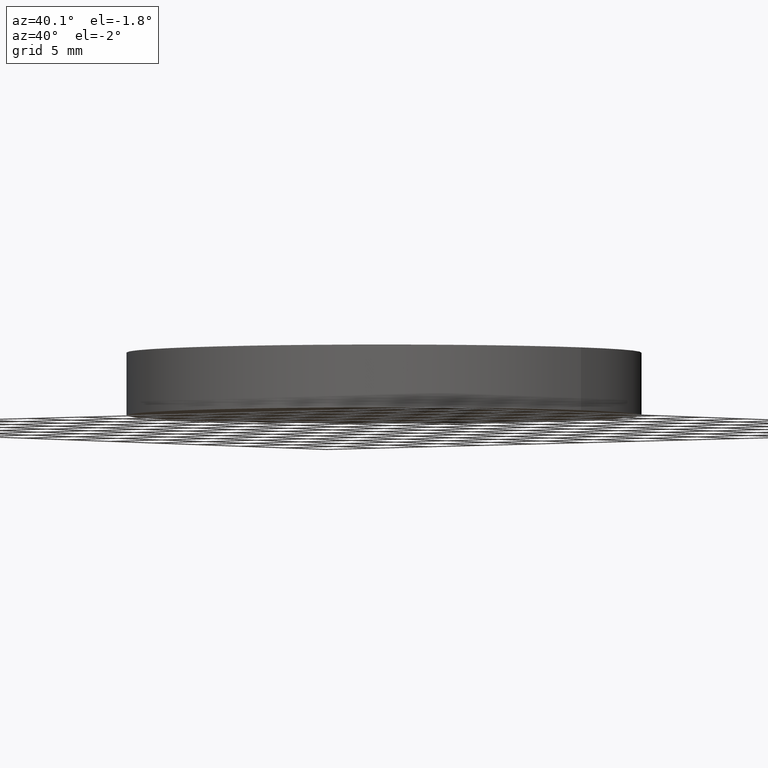
[diagram: clean part render]
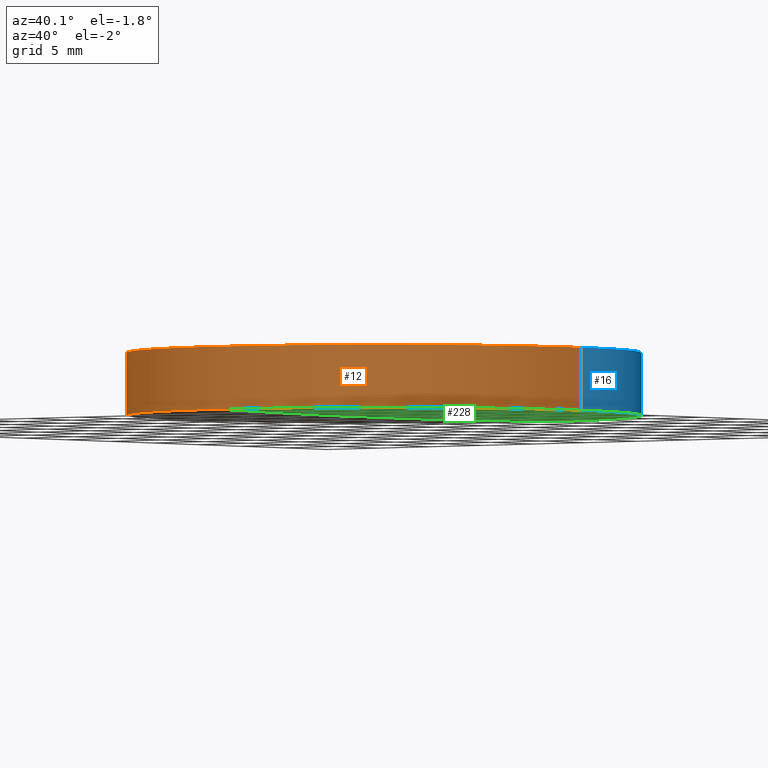
[diagram: same view with three faces highlighted in distinct colors, each labeled with its STEP entity id]
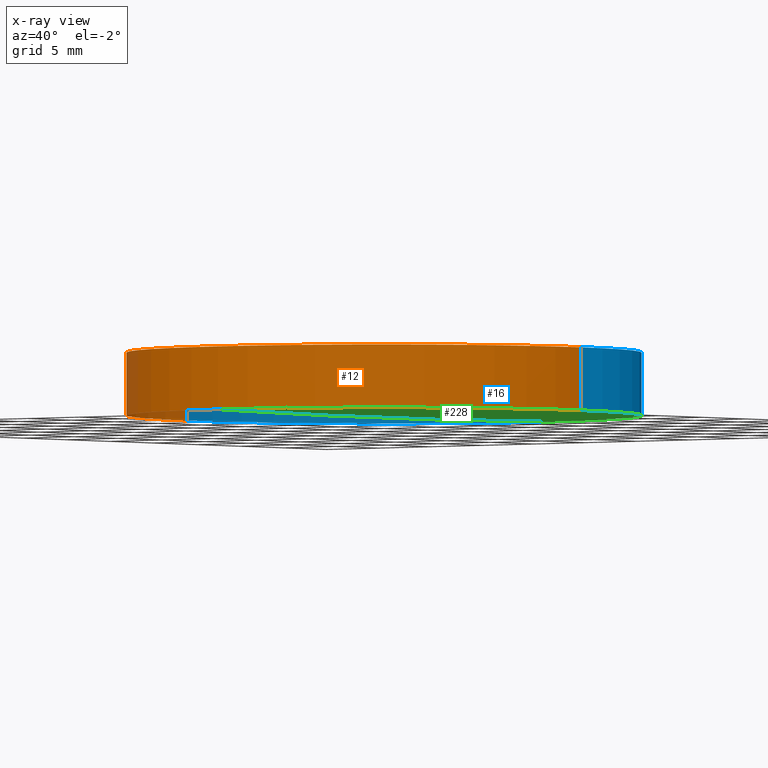
[diagram: x-ray of the same camera — body ghosted, the three highlighted faces saturated]
A machine part, auxiliary view with three faces highlighted in distinct colors.
The next image is the same camera in x-ray (body ghosted, the three faces saturated) — at least one of them is partly hidden behind the body in this view.
Their STEP definitions:

[orange] entity #12 — the highlighted cylindrical surface (partial cylindrical patch) has radius 19.05 mm, axis along (0, 0, 1).
#1 = VERTEX_POINT ( 'NONE', #48 ) ;
#2 = DIRECTION ( 'NONE',  ( 1.456985596620939900E-018, 6.792982492034799900E-035, 1.000000000000000000 ) ) ;
#5 = DIRECTION ( 'NONE',  ( -1.456985596620939900E-018, -6.792982492034799900E-035, -1.000000000000000000 ) ) ;
#11 = AXIS2_PLACEMENT_3D ( 'NONE', #174, #5, #237 ) ;
#12 = ADVANCED_FACE ( 'NONE', ( #89 ), #240, .T. ) ;
#19 = CARTESIAN_POINT ( 'NONE',  ( -19.05000000000000400, 1.444773732675583000E-015, 0.1749918621754240300 ) ) ;
#26 = CIRCLE ( 'NONE', #42, 19.05000000000000100 ) ;
#34 = DIRECTION ( 'NONE',  ( -1.456985596620939900E-018, -6.792982492034799900E-035, -1.000000000000000000 ) ) ;
#36 = VERTEX_POINT ( 'NONE', #189 ) ;
#42 = AXIS2_PLACEMENT_3D ( 'NONE', #194, #34, #154 ) ;
#48 = CARTESIAN_POINT ( 'NONE',  ( -19.05000000000000400, 1.444773732675583000E-015, 0.1749918621754240600 ) ) ;
#51 = DIRECTION ( 'NONE',  ( -1.456985596620939900E-018, -6.792982492034799900E-035, -1.000000000000000000 ) ) ;
#54 = CARTESIAN_POINT ( 'NONE',  ( -3.410605131648479900E-013, -19.04999999999755300, 4.825008137824537100 ) ) ;
#55 = EDGE_CURVE ( 'NONE', #68, #202, #26, .T. ) ;
#68 = VERTEX_POINT ( 'NONE', #54 ) ;
#75 = DIRECTION ( 'NONE',  ( 1.000000000000000000, 0.0000000000000000000, 0.0000000000000000000 ) ) ;
#76 = DIRECTION ( 'NONE',  ( 1.000000000000000000, 0.0000000000000000000, -1.422837496700137100E-018 ) ) ;
#89 = FACE_OUTER_BOUND ( 'NONE', #156, .T. ) ;
#93 = VERTEX_POINT ( 'NONE', #235 ) ;
#95 = AXIS2_PLACEMENT_3D ( 'NONE', #208, #167, #293 ) ;
#98 = ORIENTED_EDGE ( 'NONE', *, *, #285, .T. ) ;
#101 = AXIS2_PLACEMENT_3D ( 'NONE', #269, #210, #75 ) ;
#106 = LINE ( 'NONE', #170, #135 ) ;
#117 = ORIENTED_EDGE ( 'NONE', *, *, #292, .T. ) ;
#135 = VECTOR ( 'NONE', #234, 1000.000000000000000 ) ;
#146 = CIRCLE ( 'NONE', #11, 19.05000000000000100 ) ;
#151 = EDGE_CURVE ( 'NONE', #169, #1, #146, .T. ) ;
#154 = DIRECTION ( 'NONE',  ( 1.000000000000000000, 0.0000000000000000000, 0.0000000000000000000 ) ) ;
#156 = EDGE_LOOP ( 'NONE', ( #268, #171, #243, #117, #98, #157 ) ) ;
#157 = ORIENTED_EDGE ( 'NONE', *, *, #55, .T. ) ;
#165 = CIRCLE ( 'NONE', #101, 19.05000000000000100 ) ;
#167 = DIRECTION ( 'NONE',  ( 1.456985596620939900E-018, 6.792982492034799900E-035, 1.000000000000000000 ) ) ;
#169 = VERTEX_POINT ( 'NONE', #246 ) ;
#170 = CARTESIAN_POINT ( 'NONE',  ( 19.04999999999999700, -8.881784197001250400E-016, 0.1749918621754239800 ) ) ;
#171 = ORIENTED_EDGE ( 'NONE', *, *, #151, .F. ) ;
#173 = VECTOR ( 'NONE', #2, 1000.000000000000000 ) ;
#174 = CARTESIAN_POINT ( 'NONE',  ( -4.662936703425659800E-015, -8.881784197001250400E-016, 0.1749918621754240300 ) ) ;
#179 = CIRCLE ( 'NONE', #183, 19.05000000000000100 ) ;
#183 = AXIS2_PLACEMENT_3D ( 'NONE', #187, #51, #76 ) ;
#187 = CARTESIAN_POINT ( 'NONE',  ( -4.662936703425659800E-015, -8.881784197001250400E-016, 0.1749918621754240300 ) ) ;
#189 = CARTESIAN_POINT ( 'NONE',  ( 19.04999999999999700, -8.881784197001250400E-016, 4.825008137824579700 ) ) ;
#194 = CARTESIAN_POINT ( 'NONE',  ( -4.656161696687986400E-015, -8.881784197001250400E-016, 4.825008137824579700 ) ) ;
#202 = VERTEX_POINT ( 'NONE', #213 ) ;
#208 = CARTESIAN_POINT ( 'NONE',  ( -4.662936703425659800E-015, -8.881784197001250400E-016, 0.1749918621754240100 ) ) ;
#210 = DIRECTION ( 'NONE',  ( -1.456985596620939900E-018, -6.792982492034799900E-035, -1.000000000000000000 ) ) ;
#213 = CARTESIAN_POINT ( 'NONE',  ( -19.05000000000000400, 1.444773732675583000E-015, 4.825008137824579700 ) ) ;
#234 = DIRECTION ( 'NONE',  ( 1.456985596620939900E-018, 6.792982492034799900E-035, 1.000000000000000000 ) ) ;
#235 = CARTESIAN_POINT ( 'NONE',  ( 19.04999999999999700, -8.881784197001250400E-016, 0.1749918621754240100 ) ) ;
#237 = DIRECTION ( 'NONE',  ( 1.000000000000000000, 0.0000000000000000000, -1.422837496700137100E-018 ) ) ;
#240 = CYLINDRICAL_SURFACE ( 'NONE', #95, 19.05000000000000100 ) ;
#243 = ORIENTED_EDGE ( 'NONE', *, *, #271, .F. ) ;
#245 = LINE ( 'NONE', #19, #173 ) ;
#246 = CARTESIAN_POINT ( 'NONE',  ( 3.410605131648479900E-013, -19.04999999999754900, 0.1749918621754119600 ) ) ;
#268 = ORIENTED_EDGE ( 'NONE', *, *, #281, .F. ) ;
#269 = CARTESIAN_POINT ( 'NONE',  ( -4.656161696687986400E-015, -8.881784197001250400E-016, 4.825008137824579700 ) ) ;
#271 = EDGE_CURVE ( 'NONE', #93, #169, #179, .T. ) ;
#281 = EDGE_CURVE ( 'NONE', #1, #202, #245, .T. ) ;
#285 = EDGE_CURVE ( 'NONE', #36, #68, #165, .T. ) ;
#292 = EDGE_CURVE ( 'NONE', #93, #36, #106, .T. ) ;
#293 = DIRECTION ( 'NONE',  ( 1.000000000000000000, 0.0000000000000000000, -1.422837496700137100E-018 ) ) ;

[blue] entity #16 — the highlighted cylindrical surface (partial cylindrical patch) has radius 19.05 mm, axis along (0, 0, 1).
#1 = VERTEX_POINT ( 'NONE', #48 ) ;
#2 = DIRECTION ( 'NONE',  ( 1.456985596620939900E-018, 6.792982492034799900E-035, 1.000000000000000000 ) ) ;
#3 = DIRECTION ( 'NONE',  ( -1.456985596620939900E-018, -6.792982492034799900E-035, -1.000000000000000000 ) ) ;
#8 = VERTEX_POINT ( 'NONE', #273 ) ;
#13 = CIRCLE ( 'NONE', #24, 19.05000000000000100 ) ;
#16 = ADVANCED_FACE ( 'NONE', ( #249 ), #286, .T. ) ;
#17 = EDGE_CURVE ( 'NONE', #1, #8, #124, .T. ) ;
#19 = CARTESIAN_POINT ( 'NONE',  ( -19.05000000000000400, 1.444773732675583000E-015, 0.1749918621754240300 ) ) ;
#22 = DIRECTION ( 'NONE',  ( 1.000000000000000000, 0.0000000000000000000, 0.0000000000000000000 ) ) ;
#23 = DIRECTION ( 'NONE',  ( 1.000000000000000000, 0.0000000000000000000, -1.422837496700137100E-018 ) ) ;
#24 = AXIS2_PLACEMENT_3D ( 'NONE', #86, #3, #29 ) ;
#29 = DIRECTION ( 'NONE',  ( 1.000000000000000000, 0.0000000000000000000, 0.0000000000000000000 ) ) ;
#33 = AXIS2_PLACEMENT_3D ( 'NONE', #147, #84, #80 ) ;
#36 = VERTEX_POINT ( 'NONE', #189 ) ;
#38 = EDGE_CURVE ( 'NONE', #202, #110, #13, .T. ) ;
#47 = CARTESIAN_POINT ( 'NONE',  ( -4.656161696687986400E-015, -8.881784197001250400E-016, 4.825008137824579700 ) ) ;
#48 = CARTESIAN_POINT ( 'NONE',  ( -19.05000000000000400, 1.444773732675583000E-015, 0.1749918621754240600 ) ) ;
#78 = DIRECTION ( 'NONE',  ( -1.456985596620939900E-018, -6.792982492034799900E-035, -1.000000000000000000 ) ) ;
#80 = DIRECTION ( 'NONE',  ( 1.000000000000000000, -8.881784197001252300E-016, -1.422837496700137100E-018 ) ) ;
#84 = DIRECTION ( 'NONE',  ( -1.456985596620939900E-018, -6.792982492034799900E-035, -1.000000000000000000 ) ) ;
#86 = CARTESIAN_POINT ( 'NONE',  ( -4.656161696687986400E-015, -8.881784197001250400E-016, 4.825008137824579700 ) ) ;
#93 = VERTEX_POINT ( 'NONE', #235 ) ;
#100 = DIRECTION ( 'NONE',  ( -1.456985596620939900E-018, -6.792982492034799900E-035, -1.000000000000000000 ) ) ;
#106 = LINE ( 'NONE', #170, #135 ) ;
#110 = VERTEX_POINT ( 'NONE', #216 ) ;
#114 = ORIENTED_EDGE ( 'NONE', *, *, #292, .F. ) ;
#124 = CIRCLE ( 'NONE', #260, 19.05000000000000100 ) ;
#126 = ORIENTED_EDGE ( 'NONE', *, *, #160, .F. ) ;
#135 = VECTOR ( 'NONE', #234, 1000.000000000000000 ) ;
#138 = ORIENTED_EDGE ( 'NONE', *, *, #281, .T. ) ;
#147 = CARTESIAN_POINT ( 'NONE',  ( -4.662936703425659800E-015, -8.881784197001250400E-016, 0.1749918621754240300 ) ) ;
#152 = ORIENTED_EDGE ( 'NONE', *, *, #284, .T. ) ;
#160 = EDGE_CURVE ( 'NONE', #8, #93, #283, .T. ) ;
#170 = CARTESIAN_POINT ( 'NONE',  ( 19.04999999999999700, -8.881784197001250400E-016, 0.1749918621754239800 ) ) ;
#173 = VECTOR ( 'NONE', #2, 1000.000000000000000 ) ;
#189 = CARTESIAN_POINT ( 'NONE',  ( 19.04999999999999700, -8.881784197001250400E-016, 4.825008137824579700 ) ) ;
#193 = EDGE_LOOP ( 'NONE', ( #282, #138, #203, #152, #114, #126 ) ) ;
#202 = VERTEX_POINT ( 'NONE', #213 ) ;
#203 = ORIENTED_EDGE ( 'NONE', *, *, #38, .T. ) ;
#209 = CARTESIAN_POINT ( 'NONE',  ( -4.662936703425659800E-015, -8.881784197001250400E-016, 0.1749918621754240300 ) ) ;
#213 = CARTESIAN_POINT ( 'NONE',  ( -19.05000000000000400, 1.444773732675583000E-015, 4.825008137824579700 ) ) ;
#214 = AXIS2_PLACEMENT_3D ( 'NONE', #47, #100, #22 ) ;
#216 = CARTESIAN_POINT ( 'NONE',  ( -3.410605131648479900E-013, 19.04999999999766700, 4.825008137824537100 ) ) ;
#221 = AXIS2_PLACEMENT_3D ( 'NONE', #229, #291, #23 ) ;
#229 = CARTESIAN_POINT ( 'NONE',  ( -4.662936703425659800E-015, -8.881784197001250400E-016, 0.1749918621754240100 ) ) ;
#233 = DIRECTION ( 'NONE',  ( 1.000000000000000000, 0.0000000000000000000, -1.422837496700137100E-018 ) ) ;
#234 = DIRECTION ( 'NONE',  ( 1.456985596620939900E-018, 6.792982492034799900E-035, 1.000000000000000000 ) ) ;
#235 = CARTESIAN_POINT ( 'NONE',  ( 19.04999999999999700, -8.881784197001250400E-016, 0.1749918621754240100 ) ) ;
#245 = LINE ( 'NONE', #19, #173 ) ;
#249 = FACE_OUTER_BOUND ( 'NONE', #193, .T. ) ;
#260 = AXIS2_PLACEMENT_3D ( 'NONE', #209, #78, #233 ) ;
#273 = CARTESIAN_POINT ( 'NONE',  ( 3.410605131648479900E-013, 19.04999999999766700, 0.1749918621754119600 ) ) ;
#278 = CIRCLE ( 'NONE', #214, 19.05000000000000100 ) ;
#281 = EDGE_CURVE ( 'NONE', #1, #202, #245, .T. ) ;
#282 = ORIENTED_EDGE ( 'NONE', *, *, #17, .F. ) ;
#283 = CIRCLE ( 'NONE', #33, 19.05000000000000100 ) ;
#284 = EDGE_CURVE ( 'NONE', #110, #36, #278, .T. ) ;
#286 = CYLINDRICAL_SURFACE ( 'NONE', #221, 19.05000000000000100 ) ;
#291 = DIRECTION ( 'NONE',  ( 1.456985596620939900E-018, 6.792982492034799900E-035, 1.000000000000000000 ) ) ;
#292 = EDGE_CURVE ( 'NONE', #93, #36, #106, .T. ) ;

[green] entity #228 — the highlighted face is a freeform B-spline surface patch.
#8 = VERTEX_POINT ( 'NONE', #273 ) ;
#15 = CARTESIAN_POINT ( 'NONE',  ( 12.77756390800498600, 6.426931750395608500, -0.0007080486260923637900 ) ) ;
#33 = AXIS2_PLACEMENT_3D ( 'NONE', #147, #84, #80 ) ;
#37 = CIRCLE ( 'NONE', #134, 1037.000000000000000 ) ;
#43 = CARTESIAN_POINT ( 'NONE',  ( 3.410605131648479900E-013, -19.27857381669843300, 0.1792167439957914600 ) ) ;
#44 = CARTESIAN_POINT ( 'NONE',  ( 19.16539115749159800, -6.426931750395569400, 0.1173624093452770700 ) ) ;
#49 = ORIENTED_EDGE ( 'NONE', *, *, #266, .T. ) ;
#51 = DIRECTION ( 'NONE',  ( -1.456985596620939900E-018, -6.792982492034799900E-035, -1.000000000000000000 ) ) ;
#70 = CARTESIAN_POINT ( 'NONE',  ( 6.387446189191361900, -19.27857381669842600, 0.1792167439957914300 ) ) ;
#76 = DIRECTION ( 'NONE',  ( 1.000000000000000000, 0.0000000000000000000, -1.422837496700137100E-018 ) ) ;
#77 = DIRECTION ( 'NONE',  ( 0.0000000000000000000, -1.000000000000000000, -8.564883507233608400E-016 ) ) ;
#79 = FACE_OUTER_BOUND ( 'NONE', #248, .T. ) ;
#80 = DIRECTION ( 'NONE',  ( 1.000000000000000000, -8.881784197001252300E-016, -1.422837496700137100E-018 ) ) ;
#84 = DIRECTION ( 'NONE',  ( -1.456985596620939900E-018, -6.792982492034799900E-035, -1.000000000000000000 ) ) ;
#93 = VERTEX_POINT ( 'NONE', #235 ) ;
#94 = ORIENTED_EDGE ( 'NONE', *, *, #271, .T. ) ;
#97 = CARTESIAN_POINT ( 'NONE',  ( 19.16097500826483800, 19.27857381669846900, 0.3562841417854290000 ) ) ;
#99 = CARTESIAN_POINT ( 'NONE',  ( 12.77461966186314500, -19.27857381669842600, 0.2382408899773642300 ) ) ;
#121 = CARTESIAN_POINT ( 'NONE',  ( 3.410605131648479400E-013, -6.426931750395569400, -0.05974579827013896900 ) ) ;
#134 = AXIS2_PLACEMENT_3D ( 'NONE', #251, #295, #77 ) ;
#141 = CARTESIAN_POINT ( 'NONE',  ( 6.388918343689618400, -6.426931750395570300, -0.05974579827013898300 ) ) ;
#147 = CARTESIAN_POINT ( 'NONE',  ( -4.662936703425659800E-015, -8.881784197001250400E-016, 0.1749918621754240300 ) ) ;
#160 = EDGE_CURVE ( 'NONE', #8, #93, #283, .T. ) ;
#164 = CARTESIAN_POINT ( 'NONE',  ( 3.410605131648479400E-013, 6.426931750395607600, -0.05974579827013658900 ) ) ;
#169 = VERTEX_POINT ( 'NONE', #246 ) ;
#179 = CIRCLE ( 'NONE', #183, 19.05000000000000100 ) ;
#183 = AXIS2_PLACEMENT_3D ( 'NONE', #187, #51, #76 ) ;
#184 =( BOUNDED_SURFACE ( )  B_SPLINE_SURFACE ( 3, 3, ( 
 ( #43, #70, #99, #267 ),
 ( #121, #141, #226, #44 ),
 ( #164, #264, #15, #201 ),
 ( #200, #185, #227, #97 ) ),
 .UNSPECIFIED., .F., .F., .F. ) 
 B_SPLINE_SURFACE_WITH_KNOTS ( ( 4, 4 ),
 ( 4, 4 ),
 ( 0.0000000000000000000, 1.000000000000000000 ),
 ( 0.0000000000000000000, 1.000000000000000000 ),
 .UNSPECIFIED. ) 
 GEOMETRIC_REPRESENTATION_ITEM ( )  RATIONAL_B_SPLINE_SURFACE ( (
 ( 1.000000000000000000, 0.9999715361965574300, 0.9999715361965574300, 1.000000000000000000),
 ( 0.9998847851211856200, 0.9998563245971967600, 0.9998563245971967600, 0.9998847851211856200),
 ( 0.9998847851211856200, 0.9998563245971967600, 0.9998563245971967600, 0.9998847851211856200),
 ( 1.000000000000000000, 0.9999715361965574300, 0.9999715361965574300, 1.000000000000000000) ) ) 
 REPRESENTATION_ITEM ( '' )  SURFACE ( )  );
#185 = CARTESIAN_POINT ( 'NONE',  ( 6.387446189191361900, 19.27857381669846100, 0.1792167439957914300 ) ) ;
#187 = CARTESIAN_POINT ( 'NONE',  ( -4.662936703425659800E-015, -8.881784197001250400E-016, 0.1749918621754240300 ) ) ;
#200 = CARTESIAN_POINT ( 'NONE',  ( 3.410605131648479900E-013, 19.27857381669846900, 0.1792167439957914600 ) ) ;
#201 = CARTESIAN_POINT ( 'NONE',  ( 19.16539115749159800, 6.426931750395607600, 0.1173624093452794400 ) ) ;
#226 = CARTESIAN_POINT ( 'NONE',  ( 12.77756390800498600, -6.426931750395570300, -0.0007080486260947355900 ) ) ;
#227 = CARTESIAN_POINT ( 'NONE',  ( 12.77461966186314500, 19.27857381669846100, 0.2382408899773642300 ) ) ;
#228 = ADVANCED_FACE ( 'NONE', ( #79 ), #184, .T. ) ;
#235 = CARTESIAN_POINT ( 'NONE',  ( 19.04999999999999700, -8.881784197001250400E-016, 0.1749918621754240100 ) ) ;
#244 = ORIENTED_EDGE ( 'NONE', *, *, #160, .T. ) ;
#246 = CARTESIAN_POINT ( 'NONE',  ( 3.410605131648479900E-013, -19.04999999999754900, 0.1749918621754119600 ) ) ;
#248 = EDGE_LOOP ( 'NONE', ( #94, #49, #244 ) ) ;
#251 = CARTESIAN_POINT ( 'NONE',  ( 3.410605131648479900E-013, 1.136868377216160000E-013, 1037.000000000000000 ) ) ;
#264 = CARTESIAN_POINT ( 'NONE',  ( 6.388918343689618400, 6.426931750395608500, -0.05974579827013659600 ) ) ;
#266 = EDGE_CURVE ( 'NONE', #169, #8, #37, .T. ) ;
#267 = CARTESIAN_POINT ( 'NONE',  ( 19.16097500826483800, -19.27857381669843300, 0.3562841417854290000 ) ) ;
#271 = EDGE_CURVE ( 'NONE', #93, #169, #179, .T. ) ;
#273 = CARTESIAN_POINT ( 'NONE',  ( 3.410605131648479900E-013, 19.04999999999766700, 0.1749918621754119600 ) ) ;
#283 = CIRCLE ( 'NONE', #33, 19.05000000000000100 ) ;
#295 = DIRECTION ( 'NONE',  ( 1.000000000000000000, 0.0000000000000000000, 0.0000000000000000000 ) ) ;